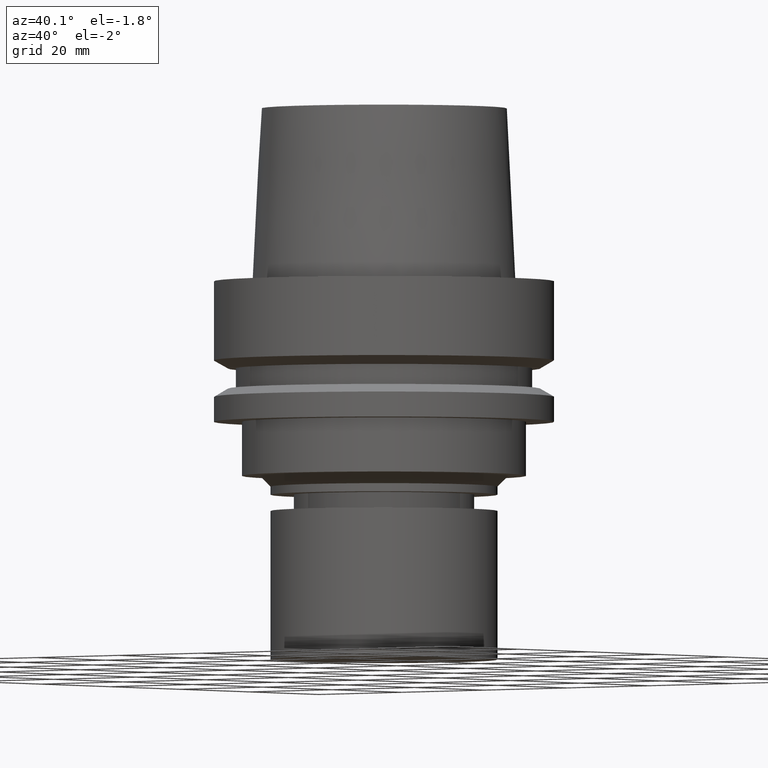
[diagram: clean part render]
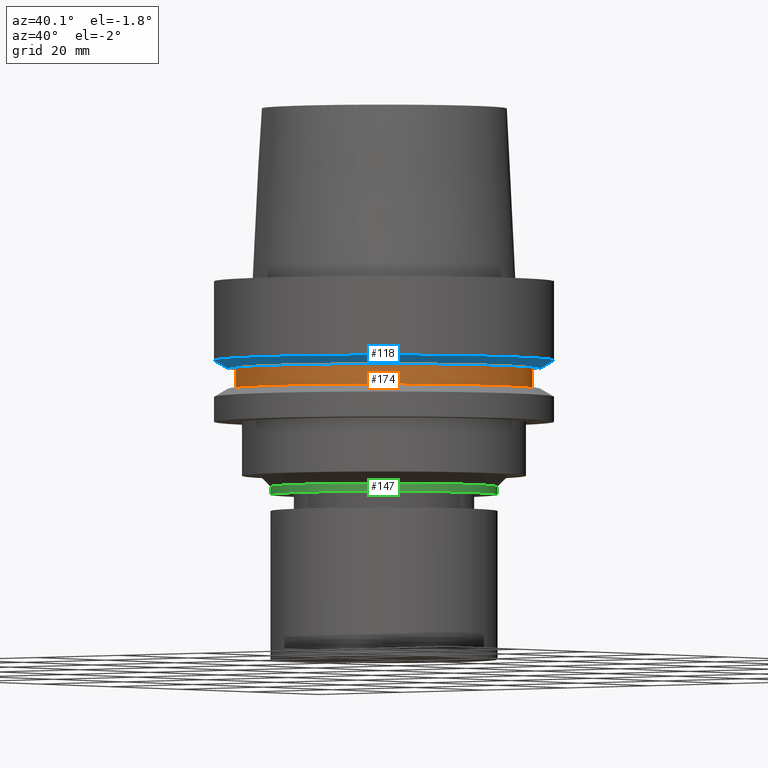
[diagram: same view with three faces highlighted in distinct colors, each labeled with its STEP entity id]
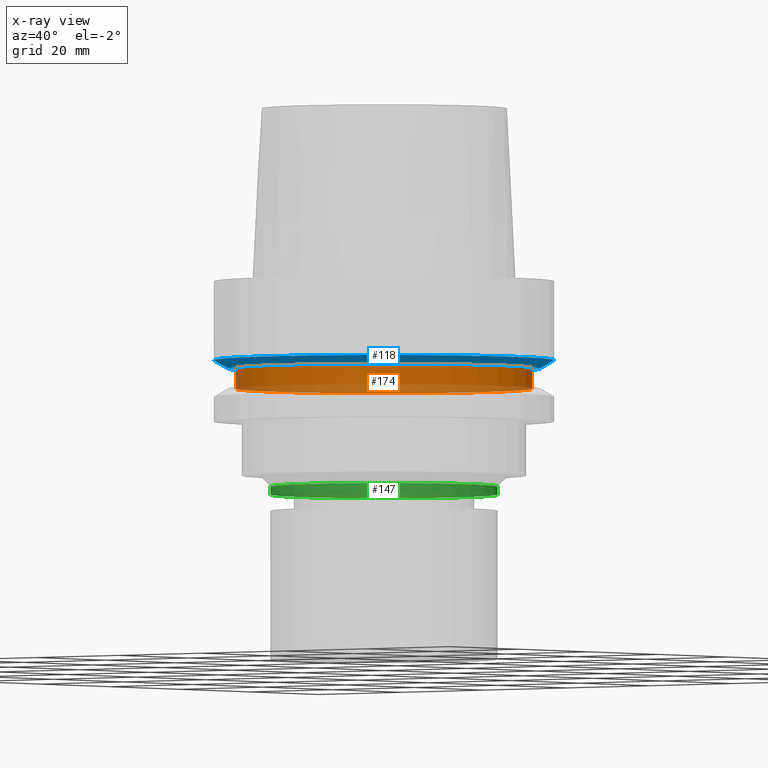
[diagram: x-ray of the same camera — body ghosted, the three highlighted faces saturated]
A machine part, auxiliary view with three faces highlighted in distinct colors.
The next image is the same camera in x-ray (body ghosted, the three faces saturated) — at least one of them is partly hidden behind the body in this view.
Their STEP definitions:

[orange] entity #174 — the highlighted cylindrical surface (bore or boss wall) has radius 27.5 mm, axis along (-0, -0, 1).
#81=EDGE_CURVE('Unnamed[1]',#222,#222,#223,.T.);
#120=EDGE_CURVE('Unnamed[1]',#282,#282,#283,.T.);
#174=ADVANCED_FACE('Unnamed[1]',(#366,#367),#368,.T.);
#222=VERTEX_POINT('',#422);
#223=CIRCLE('',#423,27.4999999999989);
#282=VERTEX_POINT('',#497);
#283=CIRCLE('',#498,27.5);
#366=FACE_BOUND('',#601,.T.);
#367=FACE_BOUND('',#602,.T.);
#368=CYLINDRICAL_SURFACE('',#603,27.4999999999994);
#422=CARTESIAN_POINT('',(1.21699275665276E-015,27.4999999999989,-19.8750000000013));
#423=AXIS2_PLACEMENT_3D('',#655,#656,#657);
#497=CARTESIAN_POINT('',(9.87371481812537E-016,27.5,-16.1249999999997));
#498=AXIS2_PLACEMENT_3D('',#719,#720,#721);
#601=EDGE_LOOP('',(#811));
#602=EDGE_LOOP('',(#812));
#603=AXIS2_PLACEMENT_3D('',#813,#814,#815);
#655=CARTESIAN_POINT('',(1.21699275665276E-015,2.43398551330552E-015,-19.8750000000013));
#656=DIRECTION('',(-6.12323399573677E-017,-1.22464679914735E-016,1.0));
#657=DIRECTION('',(-1.23259516440783E-032,1.0,1.22464679914735E-016));
#719=CARTESIAN_POINT('',(9.87371481812538E-016,1.97474296362508E-015,-16.1249999999997));
#720=DIRECTION('',(-6.12323399573677E-017,-1.22464679914735E-016,1.0));
#721=DIRECTION('',(-1.23259516440783E-032,1.0,1.22464679914735E-016));
#811=ORIENTED_EDGE('',*,*,#120,.F.);
#812=ORIENTED_EDGE('',*,*,#81,.T.);
#813=CARTESIAN_POINT('',(1.10218211923265E-015,2.2043642384653E-015,-18.0000000000005));
#814=DIRECTION('',(-6.12323399573677E-017,-1.22464679914735E-016,1.0));
#815=DIRECTION('',(-1.23259516440783E-032,1.0,1.22464679914735E-016));

[blue] entity #118 — the highlighted conical surface has half-angle 60 deg.
#115=EDGE_CURVE('Unnamed[1]',#274,#274,#275,.T.);
#118=ADVANCED_FACE('Unnamed[1]',(#278,#279),#280,.T.);
#128=EDGE_CURVE('Unnamed[1]',#295,#295,#296,.T.);
#274=VERTEX_POINT('',#487);
#275=CIRCLE('',#488,31.5);
#278=FACE_BOUND('',#492,.T.);
#279=FACE_BOUND('',#493,.T.);
#280=CONICAL_SURFACE('',#494,30.1987976320959,1.04719755119657);
#295=VERTEX_POINT('',#513);
#296=CIRCLE('',#514,28.8975952641919);
#487=CARTESIAN_POINT('',(8.95369947681261E-016,31.5,-14.6225009252407));
#488=AXIS2_PLACEMENT_3D('',#710,#711,#712);
#492=EDGE_LOOP('',(#714));
#493=EDGE_LOOP('',(#715));
#494=AXIS2_PLACEMENT_3D('',#716,#717,#718);
#513=CARTESIAN_POINT('',(9.87371481812551E-016,28.8975952641919,-16.125));
#514=AXIS2_PLACEMENT_3D('',#734,#735,#736);
#710=CARTESIAN_POINT('',(8.95369947681262E-016,1.79073989536252E-015,-14.6225009252407));
#711=DIRECTION('',(-6.12323399573677E-017,-1.22464679914735E-016,1.0));
#712=DIRECTION('',(-1.23259516440783E-032,1.0,1.22464679914735E-016));
#714=ORIENTED_EDGE('',*,*,#115,.F.);
#715=ORIENTED_EDGE('',*,*,#128,.T.);
#716=CARTESIAN_POINT('',(9.41370714746907E-016,1.88274142949381E-015,-15.3737504626203));
#717=DIRECTION('',(-6.12323399573677E-017,-1.22464679914735E-016,1.0));
#718=DIRECTION('',(-1.23259516440783E-032,1.0,1.22464679914735E-016));
#734=CARTESIAN_POINT('',(9.87371481812552E-016,1.9747429636251E-015,-16.125));
#735=DIRECTION('',(-6.12323399573677E-017,-1.22464679914735E-016,1.0));
#736=DIRECTION('',(-1.23259516440783E-032,1.0,1.22464679914735E-016));

[green] entity #147 — the highlighted cylindrical surface (bore or boss wall) has radius 21 mm, axis along (-0, -0, 1).
#147=ADVANCED_FACE('Unnamed[1]',(#324,#325),#326,.T.);
#168=EDGE_CURVE('Unnamed[1]',#357,#357,#358,.T.);
#176=EDGE_CURVE('Unnamed[1]',#370,#370,#371,.T.);
#324=FACE_BOUND('',#550,.T.);
#325=FACE_BOUND('',#551,.T.);
#326=CYLINDRICAL_SURFACE('',#552,21.0);
#357=VERTEX_POINT('',#590);
#358=CIRCLE('',#591,21.0);
#370=VERTEX_POINT('',#606);
#371=CIRCLE('',#607,21.0);
#550=EDGE_LOOP('',(#765));
#551=EDGE_LOOP('',(#766));
#552=AXIS2_PLACEMENT_3D('',#767,#768,#769);
#590=CARTESIAN_POINT('',(2.32682891837997E-015,21.0,-38.0));
#591=AXIS2_PLACEMENT_3D('',#801,#802,#803);
#606=CARTESIAN_POINT('',(2.41867742831602E-015,21.0,-39.5));
#607=AXIS2_PLACEMENT_3D('',#816,#817,#818);
#765=ORIENTED_EDGE('',*,*,#168,.F.);
#766=ORIENTED_EDGE('',*,*,#176,.T.);
#767=CARTESIAN_POINT('',(2.372753173348E-015,4.74550634669599E-015,-38.75));
#768=DIRECTION('',(-6.12323399573677E-017,-1.22464679914735E-016,1.0));
#769=DIRECTION('',(-1.23259516440783E-032,1.0,1.22464679914735E-016));
#801=CARTESIAN_POINT('',(2.32682891837997E-015,4.65365783675994E-015,-38.0));
#802=DIRECTION('',(-6.12323399573677E-017,-1.22464679914735E-016,1.0));
#803=DIRECTION('',(-1.23259516440783E-032,1.0,1.22464679914735E-016));
#816=CARTESIAN_POINT('',(2.41867742831602E-015,4.83735485663204E-015,-39.5));
#817=DIRECTION('',(-6.12323399573677E-017,-1.22464679914735E-016,1.0));
#818=DIRECTION('',(-1.23259516440783E-032,1.0,1.22464679914735E-016));